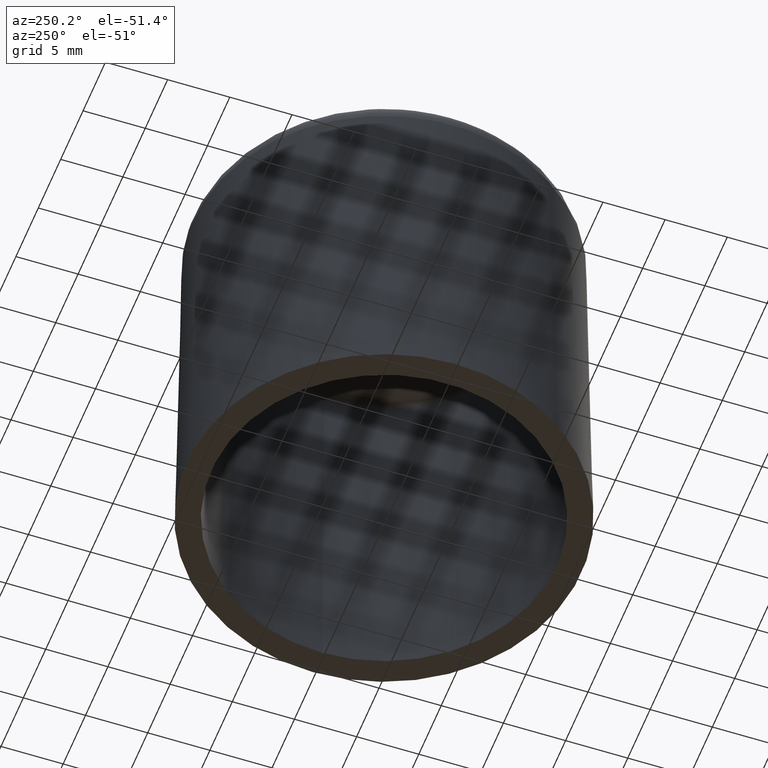
[diagram: clean part render]
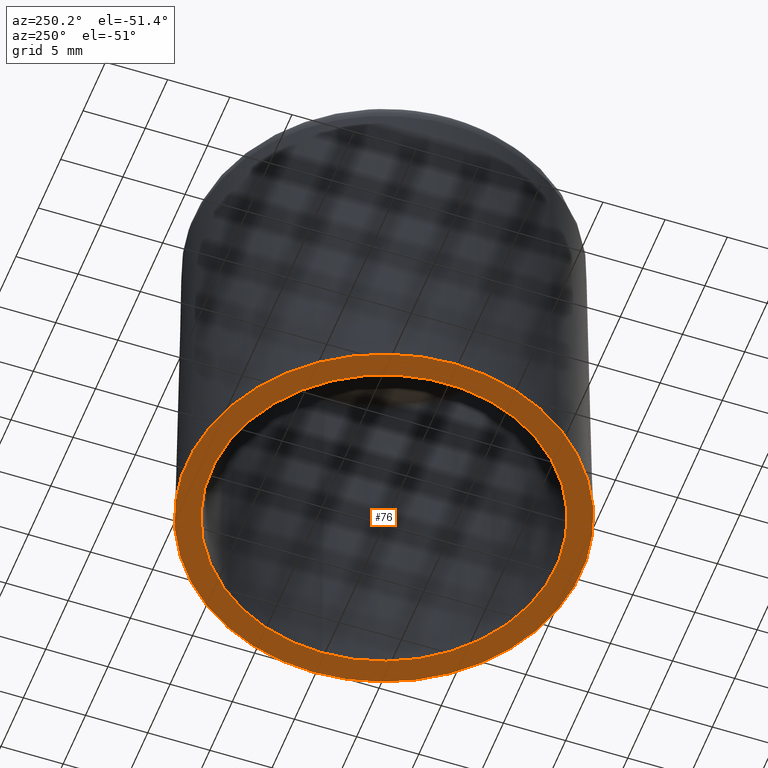
[diagram: same view with one face highlighted and labeled with its STEP entity id]
A machine part, auxiliary view. The second image highlights one B-rep face of the part: STEP entity #76.
In plain terms, the highlighted planar face has unit normal (-0, 0, 1).
Its self-contained STEP definition (entity closure, byte-faithful):
#76 = ADVANCED_FACE( '', ( #151, #152 ), #153, .F. );
#151 = FACE_OUTER_BOUND( '', #294, .T. );
#152 = FACE_BOUND( '', #295, .T. );
#153 = PLANE( '', #296 );
#294 = EDGE_LOOP( '', ( #485 ) );
#295 = EDGE_LOOP( '', ( #486 ) );
#296 = AXIS2_PLACEMENT_3D( '', #487, #488, #489 );
#485 = ORIENTED_EDGE( '', *, *, #1037, .F. );
#486 = ORIENTED_EDGE( '', *, *, #1038, .T. );
#487 = CARTESIAN_POINT( '', ( 0.000000000000000, 13.8618259739233, 0.000000000000000 ) );
#488 = DIRECTION( '', ( -6.12303176911189E-017, 0.000000000000000, 1.00000000000000 ) );
#489 = DIRECTION( '', ( 1.00000000000000, 0.000000000000000, 6.12303176911189E-017 ) );
#1037 = EDGE_CURVE( '', #1235, #1235, #1236, .T. );
#1038 = EDGE_CURVE( '', #1237, #1237, #1238, .T. );
#1235 = VERTEX_POINT( '', #1610 );
#1236 = CIRCLE( '', #1611, 15.8621306300111 );
#1237 = VERTEX_POINT( '', #1612 );
#1238 = CIRCLE( '', #1613, 13.8618259739233 );
#1610 = CARTESIAN_POINT( '', ( 15.8621306300111, 0.000000000000000, 2.87268189133625E-014 ) );
#1611 = AXIS2_PLACEMENT_3D( '', #1969, #1970, #1971 );
#1612 = CARTESIAN_POINT( '', ( 13.8618259739233, 0.000000000000000, -2.69068116074666E-014 ) );
#1613 = AXIS2_PLACEMENT_3D( '', #1972, #1973, #1974 );
#1969 = CARTESIAN_POINT( '', ( -1.69948271264483E-030, 0.000000000000000, 2.77555756156289E-014 ) );
#1970 = DIRECTION( '', ( -6.12303176911189E-017, 0.000000000000000, 1.00000000000000 ) );
#1971 = DIRECTION( '', ( 1.00000000000000, 0.000000000000000, 6.12303176911189E-017 ) );
#1972 = CARTESIAN_POINT( '', ( 1.69948271264483E-030, 0.000000000000000, -2.77555756156289E-014 ) );
#1973 = DIRECTION( '', ( -6.12303176911189E-017, 0.000000000000000, 1.00000000000000 ) );
#1974 = DIRECTION( '', ( 1.00000000000000, 0.000000000000000, 6.12303176911189E-017 ) );